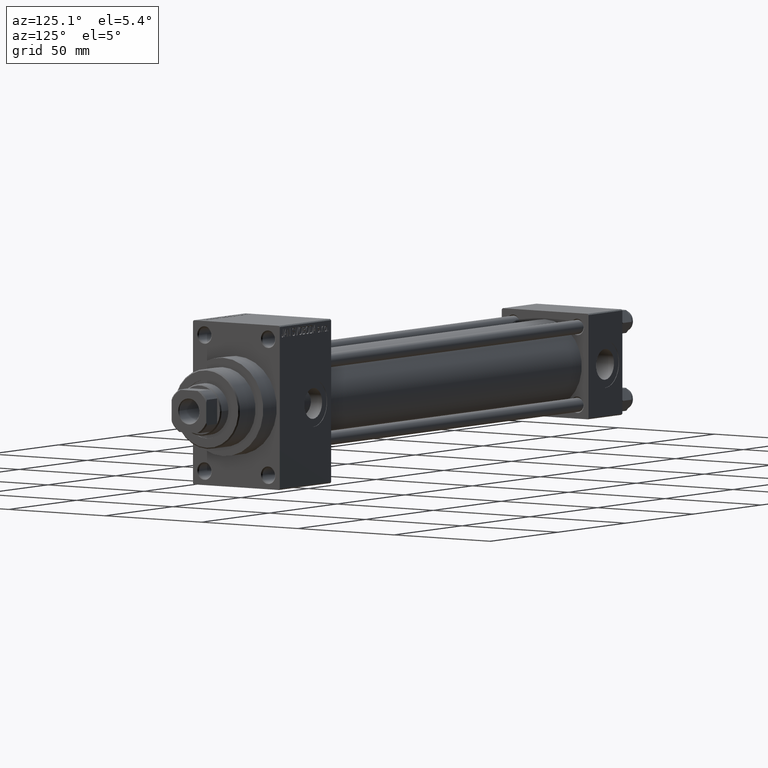
[diagram: clean part render]
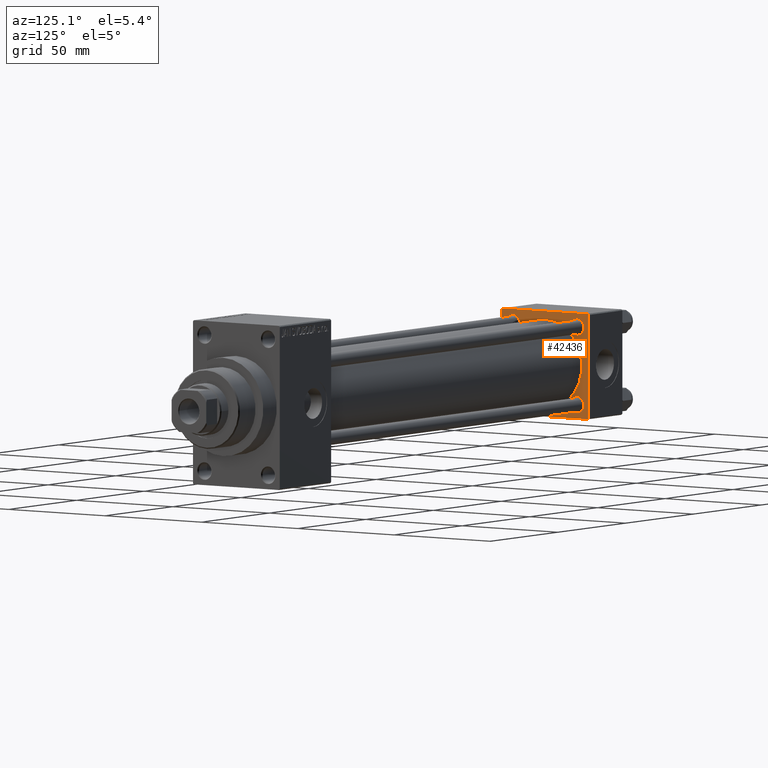
[diagram: same view with one face highlighted and labeled with its STEP entity id]
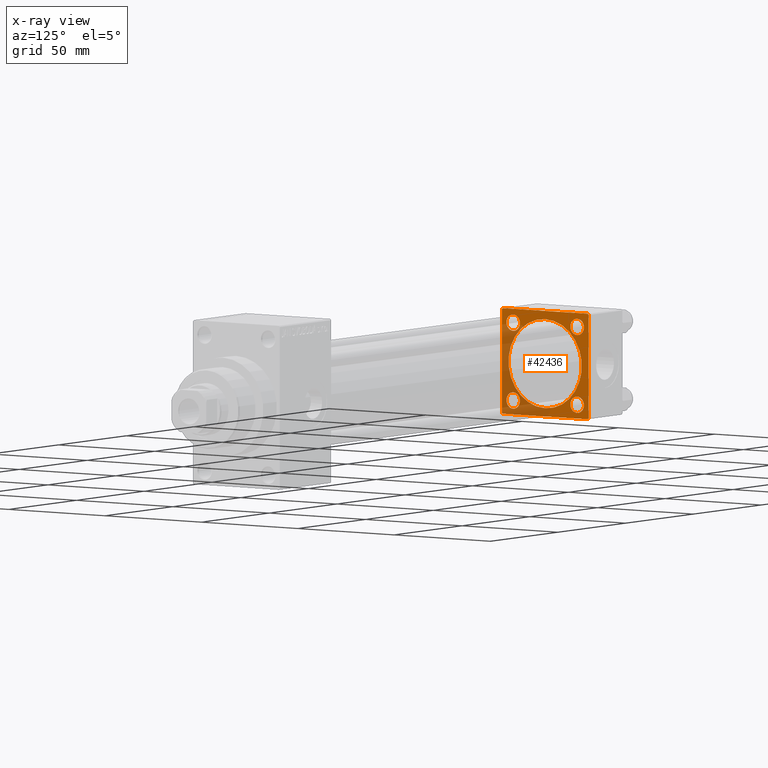
[diagram: x-ray of the same camera — body ghosted, the highlighted face saturated]
A machine part, auxiliary view. The second image highlights one B-rep face of the part: STEP entity #42436.
The next image is the same camera in x-ray: the body ghosted, the highlighted face saturated — about 37% of this face is hidden behind the body in this view.
In plain terms, the highlighted planar face has unit normal (-1, 0, 0).
Its self-contained STEP definition (entity closure, byte-faithful):
#640 = ORIENTED_EDGE ( 'NONE', *, *, #28581, .T. ) ;
#722 = DIRECTION ( 'NONE',  ( 0.000000000000000000, 0.000000000000000000, -1.000000000000000000 ) ) ;
#1252 = CARTESIAN_POINT ( 'NONE',  ( 25.00000000000000000, -21.99999999999998579, -22.50000000000000711 ) ) ;
#2438 = DIRECTION ( 'NONE',  ( -1.000000000000000000, 0.000000000000000000, -0.000000000000000000 ) ) ;
#4443 = LINE ( 'NONE', #24038, #4983 ) ;
#4646 = DIRECTION ( 'NONE',  ( 0.000000000000000000, 0.000000000000000000, 1.000000000000000000 ) ) ;
#4676 = VERTEX_POINT ( 'NONE', #22410 ) ;
#4983 = VECTOR ( 'NONE', #722, 1000.000000000000000 ) ;
#5179 = DIRECTION ( 'NONE',  ( -1.000000000000000000, 0.000000000000000000, -0.000000000000000000 ) ) ;
#5202 = VERTEX_POINT ( 'NONE', #33755 ) ;
#5669 = DIRECTION ( 'NONE',  ( 0.000000000000000000, 0.000000000000000000, 1.000000000000000000 ) ) ;
#6464 = CARTESIAN_POINT ( 'NONE',  ( 25.00000000000000000, 0.000000000000000000, 0.000000000000000000 ) ) ;
#6713 = FACE_BOUND ( 'NONE', #9066, .T. ) ;
#7011 = CIRCLE ( 'NONE', #35513, 3.500000000000031086 ) ;
#7092 = VERTEX_POINT ( 'NONE', #48966 ) ;
#7964 = VECTOR ( 'NONE', #43192, 1000.000000000000000 ) ;
#7992 = CIRCLE ( 'NONE', #8032, 3.500000000000031086 ) ;
#8032 = AXIS2_PLACEMENT_3D ( 'NONE', #40660, #2438, #37395 ) ;
#8841 = CARTESIAN_POINT ( 'NONE',  ( 25.00000000000000000, -16.59999999999999076, 13.10000000000000142 ) ) ;
#8876 = AXIS2_PLACEMENT_3D ( 'NONE', #31673, #42860, #4646 ) ;
#9066 = EDGE_LOOP ( 'NONE', ( #25247, #14827 ) ) ;
#9253 = VERTEX_POINT ( 'NONE', #45570 ) ;
#9351 = CARTESIAN_POINT ( 'NONE',  ( 25.00000000000000000, 21.99999999999999289, 22.50000000000000355 ) ) ;
#9364 = DIRECTION ( 'NONE',  ( 0.000000000000000000, -0.7071067811865474617, 0.7071067811865474617 ) ) ;
#9380 = CARTESIAN_POINT ( 'NONE',  ( 25.00000000000000000, -16.59999999999999076, 20.10000000000001208 ) ) ;
#10103 = DIRECTION ( 'NONE',  ( -1.000000000000000000, 0.000000000000000000, -0.000000000000000000 ) ) ;
#10126 = CARTESIAN_POINT ( 'NONE',  ( 25.00000000000000000, 22.50000000000000000, 21.99999999999999645 ) ) ;
#11008 = VERTEX_POINT ( 'NONE', #46278 ) ;
#12383 = AXIS2_PLACEMENT_3D ( 'NONE', #46849, #35910, #12831 ) ;
#12831 = DIRECTION ( 'NONE',  ( 0.000000000000000000, 0.000000000000000000, 1.000000000000000000 ) ) ;
#13085 = LINE ( 'NONE', #17286, #48312 ) ;
#13654 = CIRCLE ( 'NONE', #8876, 19.00000000000000000 ) ;
#13668 = FACE_BOUND ( 'NONE', #33423, .T. ) ;
#14112 = EDGE_CURVE ( 'NONE', #11008, #9253, #43410, .T. ) ;
#14293 = DIRECTION ( 'NONE',  ( 0.000000000000000000, 0.000000000000000000, 1.000000000000000000 ) ) ;
#14351 = CARTESIAN_POINT ( 'NONE',  ( 25.00000000000000000, -16.59999999999999076, -16.60000000000000853 ) ) ;
#14407 = DIRECTION ( 'NONE',  ( -1.000000000000000000, 0.000000000000000000, -0.000000000000000000 ) ) ;
#14538 = VERTEX_POINT ( 'NONE', #21961 ) ;
#14783 = CIRCLE ( 'NONE', #33044, 3.500000000000006661 ) ;
#14827 = ORIENTED_EDGE ( 'NONE', *, *, #46432, .F. ) ;
#16015 = AXIS2_PLACEMENT_3D ( 'NONE', #6464, #33022, #33503 ) ;
#16083 = CIRCLE ( 'NONE', #28796, 3.500000000000003109 ) ;
#16815 = DIRECTION ( 'NONE',  ( 0.000000000000000000, -1.000000000000000000, -7.709882115452476934E-17 ) ) ;
#16986 = ORIENTED_EDGE ( 'NONE', *, *, #37801, .T. ) ;
#16989 = EDGE_CURVE ( 'NONE', #45122, #31436, #38535, .T. ) ;
#17286 = CARTESIAN_POINT ( 'NONE',  ( 25.00000000000000000, 21.99999999999999289, 22.50000000000000355 ) ) ;
#17889 = ORIENTED_EDGE ( 'NONE', *, *, #48193, .T. ) ;
#18991 = AXIS2_PLACEMENT_3D ( 'NONE', #21861, #14407, #43491 ) ;
#20346 = VERTEX_POINT ( 'NONE', #9351 ) ;
#20462 = ORIENTED_EDGE ( 'NONE', *, *, #14112, .T. ) ;
#20785 = EDGE_LOOP ( 'NONE', ( #29269, #17889 ) ) ;
#20832 = CARTESIAN_POINT ( 'NONE',  ( 25.00000000000000000, -22.50000000000000000, 22.00000000000000000 ) ) ;
#21249 = EDGE_CURVE ( 'NONE', #24484, #5202, #37746, .T. ) ;
#21656 = DIRECTION ( 'NONE',  ( -1.000000000000000000, 0.000000000000000000, -0.000000000000000000 ) ) ;
#21836 = FACE_BOUND ( 'NONE', #33337, .T. ) ;
#21861 = CARTESIAN_POINT ( 'NONE',  ( 25.00000000000000000, 16.59999999999999787, 16.60000000000000497 ) ) ;
#21961 = CARTESIAN_POINT ( 'NONE',  ( 25.00000000000000000, -21.99999999999997158, -22.50000000000000711 ) ) ;
#22331 = EDGE_CURVE ( 'NONE', #31436, #45122, #14783, .T. ) ;
#22410 = CARTESIAN_POINT ( 'NONE',  ( 25.00000000000000000, 16.59999999999999787, 13.09999999999997300 ) ) ;
#22465 = DIRECTION ( 'NONE',  ( -0.000000000000000000, 0.7071067811865426878, 0.7071067811865524577 ) ) ;
#22927 = VECTOR ( 'NONE', #16815, 1000.000000000000000 ) ;
#22995 = CARTESIAN_POINT ( 'NONE',  ( 25.00000000000000000, 16.59999999999999787, -20.10000000000003340 ) ) ;
#23221 = CARTESIAN_POINT ( 'NONE',  ( 25.00000000000000000, -16.59999999999999076, -20.10000000000000853 ) ) ;
#23785 = CARTESIAN_POINT ( 'NONE',  ( 25.00000000000000000, -16.59999999999999076, 16.60000000000000853 ) ) ;
#24038 = CARTESIAN_POINT ( 'NONE',  ( 25.00000000000000000, 22.50000000000000000, 22.50000000000000355 ) ) ;
#24274 = CARTESIAN_POINT ( 'NONE',  ( 25.00000000000000000, 22.50000000000000000, 22.50000000000000355 ) ) ;
#24329 = EDGE_CURVE ( 'NONE', #35443, #27130, #29924, .T. ) ;
#24429 = VERTEX_POINT ( 'NONE', #45574 ) ;
#24437 = VECTOR ( 'NONE', #28789, 999.9999999999998863 ) ;
#24484 = VERTEX_POINT ( 'NONE', #42333 ) ;
#24928 = VERTEX_POINT ( 'NONE', #26290 ) ;
#25032 = ORIENTED_EDGE ( 'NONE', *, *, #37020, .T. ) ;
#25055 = LINE ( 'NONE', #20832, #24437 ) ;
#25084 = FACE_BOUND ( 'NONE', #20785, .T. ) ;
#25247 = ORIENTED_EDGE ( 'NONE', *, *, #21249, .F. ) ;
#26033 = AXIS2_PLACEMENT_3D ( 'NONE', #44174, #29029, #48121 ) ;
#26116 = DIRECTION ( 'NONE',  ( 0.000000000000000000, 0.000000000000000000, 1.000000000000000000 ) ) ;
#26290 = CARTESIAN_POINT ( 'NONE',  ( 25.00000000000000000, 16.59999999999999787, 20.10000000000003340 ) ) ;
#26884 = ORIENTED_EDGE ( 'NONE', *, *, #30184, .T. ) ;
#27130 = VERTEX_POINT ( 'NONE', #33390 ) ;
#27750 = ORIENTED_EDGE ( 'NONE', *, *, #22331, .T. ) ;
#27907 = VERTEX_POINT ( 'NONE', #23221 ) ;
#28163 = ORIENTED_EDGE ( 'NONE', *, *, #40255, .T. ) ;
#28581 = EDGE_CURVE ( 'NONE', #20346, #24429, #39662, .T. ) ;
#28789 = DIRECTION ( 'NONE',  ( -0.000000000000000000, -0.7071067811865525687, -0.7071067811865425767 ) ) ;
#28796 = AXIS2_PLACEMENT_3D ( 'NONE', #14351, #30001, #29513 ) ;
#28912 = VECTOR ( 'NONE', #34289, 1000.000000000000000 ) ;
#29029 = DIRECTION ( 'NONE',  ( -1.000000000000000000, 0.000000000000000000, -0.000000000000000000 ) ) ;
#29147 = VECTOR ( 'NONE', #22465, 1000.000000000000000 ) ;
#29269 = ORIENTED_EDGE ( 'NONE', *, *, #33449, .T. ) ;
#29513 = DIRECTION ( 'NONE',  ( 0.000000000000000000, 0.000000000000000000, 1.000000000000000000 ) ) ;
#29924 = LINE ( 'NONE', #45082, #29147 ) ;
#29966 = ORIENTED_EDGE ( 'NONE', *, *, #24329, .T. ) ;
#30001 = DIRECTION ( 'NONE',  ( -1.000000000000000000, 0.000000000000000000, -0.000000000000000000 ) ) ;
#30184 = EDGE_CURVE ( 'NONE', #24429, #11008, #25055, .T. ) ;
#30238 = EDGE_CURVE ( 'NONE', #41187, #46208, #48207, .T. ) ;
#30401 = DIRECTION ( 'NONE',  ( 0.000000000000000000, -1.000000000000000000, -2.312964634635742957E-16 ) ) ;
#30601 = AXIS2_PLACEMENT_3D ( 'NONE', #23785, #5179, #5669 ) ;
#30768 = CIRCLE ( 'NONE', #42650, 3.500000000000003109 ) ;
#30838 = CARTESIAN_POINT ( 'NONE',  ( 25.00000000000000000, 16.59999999999999787, -16.60000000000000497 ) ) ;
#31120 = CARTESIAN_POINT ( 'NONE',  ( 25.00000000000000000, 22.50000000000000000, -22.49999999999999645 ) ) ;
#31436 = VERTEX_POINT ( 'NONE', #9380 ) ;
#31456 = EDGE_LOOP ( 'NONE', ( #31800, #27750 ) ) ;
#31673 = CARTESIAN_POINT ( 'NONE',  ( 24.99999999999999289, -2.602085213965210642E-15, 0.000000000000000000 ) ) ;
#31800 = ORIENTED_EDGE ( 'NONE', *, *, #16989, .T. ) ;
#32696 = CARTESIAN_POINT ( 'NONE',  ( 25.00000000000000000, -16.59999999999999076, -16.60000000000000853 ) ) ;
#33022 = DIRECTION ( 'NONE',  ( -1.000000000000000000, 0.000000000000000000, -0.000000000000000000 ) ) ;
#33044 = AXIS2_PLACEMENT_3D ( 'NONE', #40537, #21656, #26116 ) ;
#33337 = EDGE_LOOP ( 'NONE', ( #28163, #16986 ) ) ;
#33390 = CARTESIAN_POINT ( 'NONE',  ( 25.00000000000000000, 22.50000000000000000, -21.99999999999996803 ) ) ;
#33413 = ORIENTED_EDGE ( 'NONE', *, *, #43956, .F. ) ;
#33423 = EDGE_LOOP ( 'NONE', ( #36953, #36892 ) ) ;
#33449 = EDGE_CURVE ( 'NONE', #27907, #7092, #30768, .T. ) ;
#33503 = DIRECTION ( 'NONE',  ( -0.000000000000000000, 0.000000000000000000, 1.000000000000000000 ) ) ;
#33565 = EDGE_CURVE ( 'NONE', #46208, #41187, #7011, .T. ) ;
#33755 = CARTESIAN_POINT ( 'NONE',  ( 24.99999999999999289, -2.752562955852396712E-16, -19.00000000000000000 ) ) ;
#34289 = DIRECTION ( 'NONE',  ( 0.000000000000000000, 0.000000000000000000, -1.000000000000000000 ) ) ;
#35443 = VERTEX_POINT ( 'NONE', #42834 ) ;
#35513 = AXIS2_PLACEMENT_3D ( 'NONE', #30838, #37372, #42030 ) ;
#35910 = DIRECTION ( 'NONE',  ( 1.000000000000000000, -0.000000000000000000, 0.000000000000000000 ) ) ;
#36493 = FACE_OUTER_BOUND ( 'NONE', #40743, .T. ) ;
#36695 = CARTESIAN_POINT ( 'NONE',  ( 25.00000000000000000, 16.59999999999999787, -13.09999999999997300 ) ) ;
#36892 = ORIENTED_EDGE ( 'NONE', *, *, #33565, .T. ) ;
#36953 = ORIENTED_EDGE ( 'NONE', *, *, #30238, .T. ) ;
#37020 = EDGE_CURVE ( 'NONE', #40214, #20346, #13085, .T. ) ;
#37372 = DIRECTION ( 'NONE',  ( -1.000000000000000000, 0.000000000000000000, -0.000000000000000000 ) ) ;
#37395 = DIRECTION ( 'NONE',  ( 0.000000000000000000, 0.000000000000000000, 1.000000000000000000 ) ) ;
#37426 = VECTOR ( 'NONE', #30401, 1000.000000000000000 ) ;
#37746 = CIRCLE ( 'NONE', #12383, 19.00000000000000000 ) ;
#37801 = EDGE_CURVE ( 'NONE', #24928, #4676, #38852, .T. ) ;
#38011 = CARTESIAN_POINT ( 'NONE',  ( 25.00000000000000000, -22.50000000000000000, 22.50000000000000000 ) ) ;
#38535 = CIRCLE ( 'NONE', #30601, 3.500000000000006661 ) ;
#38852 = CIRCLE ( 'NONE', #18991, 3.500000000000031086 ) ;
#38878 = EDGE_CURVE ( 'NONE', #9253, #14538, #46440, .T. ) ;
#39593 = ORIENTED_EDGE ( 'NONE', *, *, #42706, .F. ) ;
#39662 = LINE ( 'NONE', #24274, #22927 ) ;
#40214 = VERTEX_POINT ( 'NONE', #10126 ) ;
#40255 = EDGE_CURVE ( 'NONE', #4676, #24928, #7992, .T. ) ;
#40478 = PLANE ( 'NONE',  #16015 ) ;
#40537 = CARTESIAN_POINT ( 'NONE',  ( 25.00000000000000000, -16.59999999999999076, 16.60000000000000853 ) ) ;
#40660 = CARTESIAN_POINT ( 'NONE',  ( 25.00000000000000000, 16.59999999999999787, 16.60000000000000497 ) ) ;
#40743 = EDGE_LOOP ( 'NONE', ( #39593, #29966, #33413, #25032, #640, #26884, #20462, #45772 ) ) ;
#41187 = VERTEX_POINT ( 'NONE', #22995 ) ;
#42030 = DIRECTION ( 'NONE',  ( 0.000000000000000000, 0.000000000000000000, 1.000000000000000000 ) ) ;
#42333 = CARTESIAN_POINT ( 'NONE',  ( 24.99999999999999289, -2.602085213965210642E-15, 19.00000000000000000 ) ) ;
#42436 = ADVANCED_FACE ( 'NONE', ( #25084, #13668, #44202, #21836, #6713, #36493 ), #40478, .F. ) ;
#42650 = AXIS2_PLACEMENT_3D ( 'NONE', #32696, #10103, #14293 ) ;
#42706 = EDGE_CURVE ( 'NONE', #35443, #14538, #46290, .T. ) ;
#42834 = CARTESIAN_POINT ( 'NONE',  ( 25.00000000000000000, 21.99999999999999289, -22.49999999999999645 ) ) ;
#42860 = DIRECTION ( 'NONE',  ( 1.000000000000000000, -0.000000000000000000, 0.000000000000000000 ) ) ;
#43192 = DIRECTION ( 'NONE',  ( 0.000000000000000000, 0.7071067811865426878, -0.7071067811865524577 ) ) ;
#43410 = LINE ( 'NONE', #38011, #28912 ) ;
#43491 = DIRECTION ( 'NONE',  ( 0.000000000000000000, 0.000000000000000000, 1.000000000000000000 ) ) ;
#43956 = EDGE_CURVE ( 'NONE', #40214, #27130, #4443, .T. ) ;
#44174 = CARTESIAN_POINT ( 'NONE',  ( 25.00000000000000000, 16.59999999999999787, -16.60000000000000497 ) ) ;
#44202 = FACE_BOUND ( 'NONE', #31456, .T. ) ;
#45082 = CARTESIAN_POINT ( 'NONE',  ( 25.00000000000000000, 22.50000000000000000, -21.99999999999998224 ) ) ;
#45122 = VERTEX_POINT ( 'NONE', #8841 ) ;
#45570 = CARTESIAN_POINT ( 'NONE',  ( 25.00000000000000000, -22.50000000000000000, -21.99999999999997158 ) ) ;
#45574 = CARTESIAN_POINT ( 'NONE',  ( 25.00000000000000000, -21.99999999999997868, 22.50000000000000000 ) ) ;
#45772 = ORIENTED_EDGE ( 'NONE', *, *, #38878, .T. ) ;
#46208 = VERTEX_POINT ( 'NONE', #36695 ) ;
#46278 = CARTESIAN_POINT ( 'NONE',  ( 25.00000000000000000, -22.50000000000000000, 22.00000000000000000 ) ) ;
#46290 = LINE ( 'NONE', #31120, #37426 ) ;
#46432 = EDGE_CURVE ( 'NONE', #5202, #24484, #13654, .T. ) ;
#46440 = LINE ( 'NONE', #1252, #7964 ) ;
#46849 = CARTESIAN_POINT ( 'NONE',  ( 24.99999999999999289, -2.602085213965210642E-15, 0.000000000000000000 ) ) ;
#48121 = DIRECTION ( 'NONE',  ( 0.000000000000000000, 0.000000000000000000, 1.000000000000000000 ) ) ;
#48193 = EDGE_CURVE ( 'NONE', #7092, #27907, #16083, .T. ) ;
#48207 = CIRCLE ( 'NONE', #26033, 3.500000000000031086 ) ;
#48312 = VECTOR ( 'NONE', #9364, 1000.000000000000114 ) ;
#48966 = CARTESIAN_POINT ( 'NONE',  ( 25.00000000000000000, -16.59999999999999076, -13.10000000000000320 ) ) ;